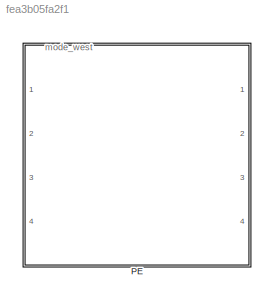
MODEL slx_fea3b05fa2f1
KIND library
CONFIG AbsTol = auto
CONFIG EnableMultiTasking = off
CONFIG FixedStep = auto
CONFIG MaxStep = auto
CONFIG MinStep = auto
CONFIG RelTol = 1e-3
CONFIG SampleTimeConstraint = Unconstrained
CONFIG SolverName = VariableStepAuto
CONFIG StartTime = 0.0
CONFIG StopTime = 10.0
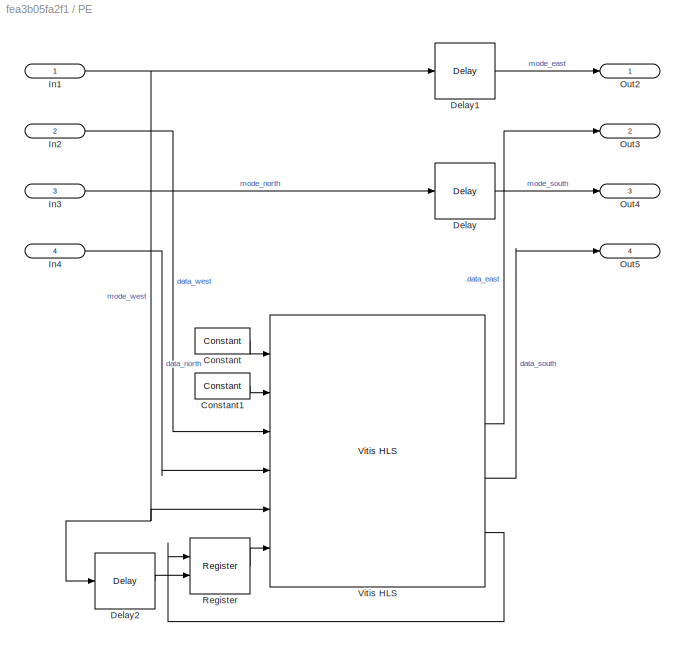
BLOCK [SubSystem] PE
  PortSchema = {"entries":[{"content":{"sides":[{"content":{"connectorIds":["In1","In2"]},"type":"ConnectorPlacement.EquallySpacedRectSide","uuid":"f7e55443-70fb-4ed5-ab4f-147f7311106a"},{"content":{"connectorIds":["Out1","Out2"],"side":"RIGHT"},"type":"ConnectorPlacement.EquallySpacedRectSide","uuid":"6de0769a-4a22-4abb-b630-26d0c175204f"},{"content":{"connectorIds":["In3","In4"],"side":"TOP"},"type":"Connector...<+421ch>
  Ports = [4, 4]
  RequestExecContextInheritance = off
BLOCK [Reference] PE/Constant  REF=hdlBasic/Constant
  Ports = [0, 1]
  SourceBlock = hdlBasic/Constant
  SourceType = Constant Block Block
BLOCK [Reference] PE/Constant1  REF=hdlBasic/Constant
  Ports = [0, 1]
  SourceBlock = hdlBasic/Constant
  SourceType = Constant Block Block
BLOCK [Reference] PE/Delay  REF=hdlBasic/Delay
  Ports = [1, 1]
  SourceBlock = hdlBasic/Delay
  SourceType = Delay Block
BLOCK [Reference] PE/Delay1  REF=hdlBasic/Delay
  Ports = [1, 1]
  SourceBlock = hdlBasic/Delay
  SourceType = Delay Block
BLOCK [Reference] PE/Delay2  REF=hdlBasic/Delay
  Ports = [1, 1]
  SourceBlock = hdlBasic/Delay
  SourceType = Delay Block
BLOCK [Inport] PE/In1
  IconDisplay = Signal name
BLOCK [Inport] PE/In2
  IconDisplay = Signal name
  Port = 2
BLOCK [Inport] PE/In3
  IconDisplay = Signal name
  Port = 3
BLOCK [Inport] PE/In4
  IconDisplay = Signal name
  Port = 4
BLOCK [Outport] PE/Out2
  IconDisplay = Signal name
BLOCK [Outport] PE/Out3
  IconDisplay = Signal name
  Port = 2
BLOCK [Outport] PE/Out4
  IconDisplay = Signal name
  Port = 3
BLOCK [Outport] PE/Out5
  IconDisplay = Signal name
  Port = 4
BLOCK [Reference] PE/Register  REF=hdlBasic/Register
  Ports = [2, 1]
  SourceBlock = hdlBasic/Register
  SourceType = Register Block
BLOCK [Reference] PE/Vitis HLS  REF=hdlBasic/Vitis HLS
  Ports = [6, 9]
  SourceBlock = hdlBasic/Vitis HLS
  SourceType = Xilinx High Level Synthesis Block
ANNOTATION (root): mode_west
LINE PE/Constant1:1 -> PE/Vitis HLS:2
LINE PE/Constant:1 -> PE/Vitis HLS:1
LINE PE/Delay1:1 -> PE/Out2:1
LINE PE/Delay2:1 -> PE/Register:2
LINE PE/Delay:1 -> PE/Out4:1
NET PE/In1:1 -> PE/Delay1:1, PE/Delay2:1, PE/Vitis HLS:5
LINE PE/In2:1 -> PE/Vitis HLS:3
LINE PE/In3:1 -> PE/Delay:1
LINE PE/In4:1 -> PE/Vitis HLS:4
LINE PE/Register:1 -> PE/Vitis HLS:6
LINE PE/Vitis HLS:4 -> PE/Out3:1
LINE PE/Vitis HLS:6 -> PE/Out5:1
LINE PE/Vitis HLS:8 -> PE/Register:1
note: NET lines group one-source signal fan-out (src -> all destinations, sorted); 1:1 wires keep LINE
